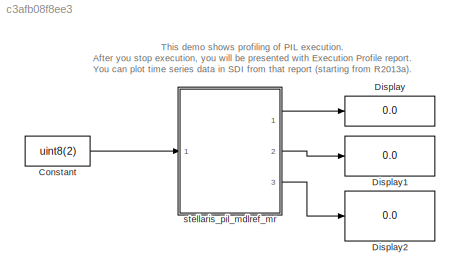
MODEL slx_c3afb08f8ee3
KIND model
CONFIG StopFcn = executionProfile.report;
BLOCK [Constant] Constant
  SampleTime = 0.01
  Value = uint8(2)
BLOCK [Display] Display
  Decimation = 1
  Lockdown = off
  Ports = [1]
BLOCK [Display] Display1
  Decimation = 1
  Lockdown = off
  Ports = [1]
BLOCK [Display] Display2
  Decimation = 1
  Lockdown = off
  Ports = [1]
BLOCK [ModelReference] stellaris_pil_mdlref_mr
  CopyOfModelName = stellaris_pil_mdlref_mr
  DefaultDataLogging = on
  ModelNameDialog = stellaris_pil_mdlref_mr
  ModelReferenceVersion = 1.29
  Ports = [1, 3]
ANNOTATION (root): This demo shows profiling of PIL execution. After you stop execution, you will be presented with Execution Profile report. You can plot time series data in SDI from that report (starting from R2013a).
LINE Constant:1 -> stellaris_pil_mdlref_mr:1
LINE stellaris_pil_mdlref_mr:1 -> Display:1
LINE stellaris_pil_mdlref_mr:2 -> Display1:1
LINE stellaris_pil_mdlref_mr:3 -> Display2:1
